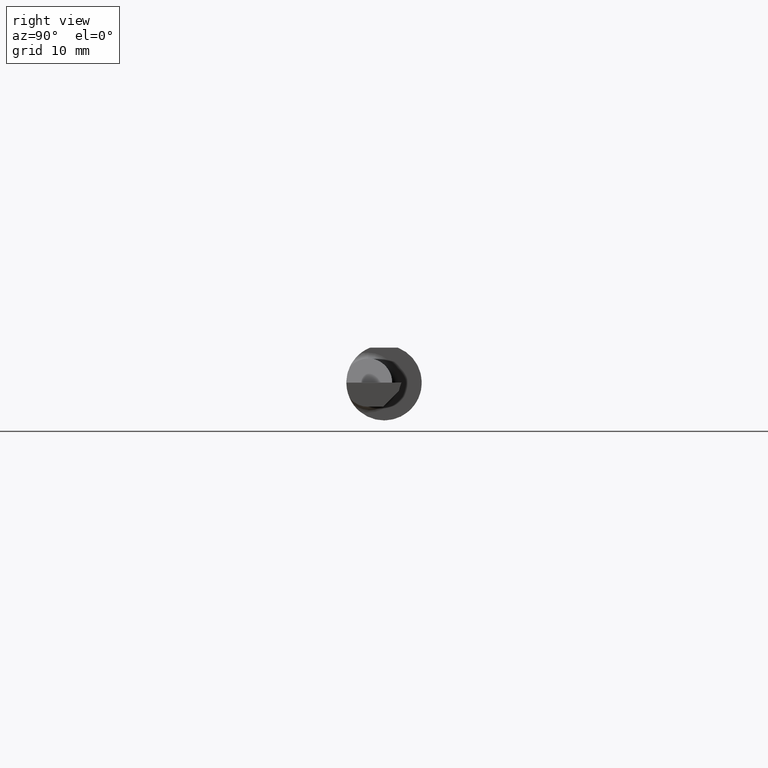
[diagram: clean part render]
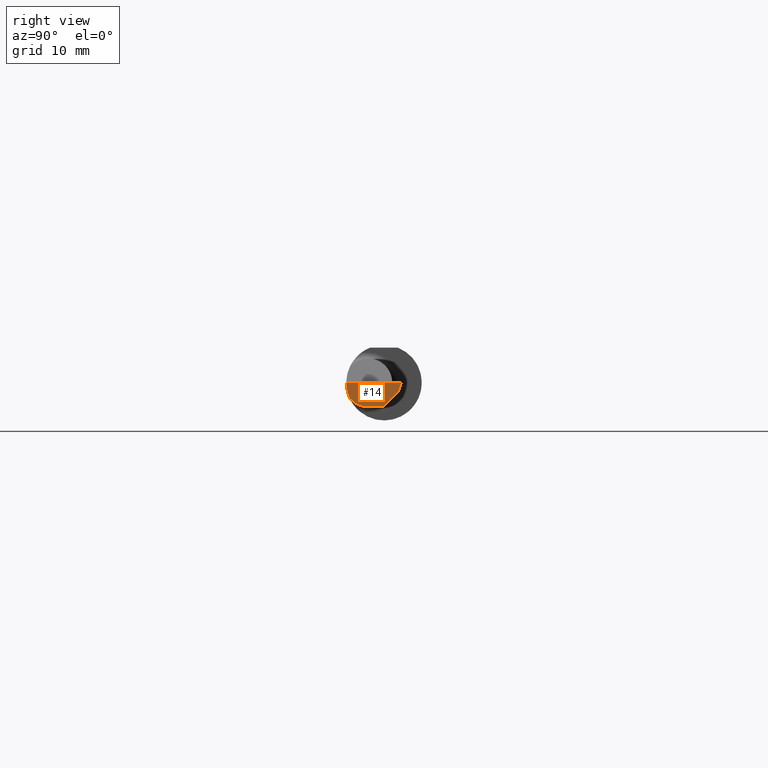
[diagram: same view with one face highlighted and labeled with its STEP entity id]
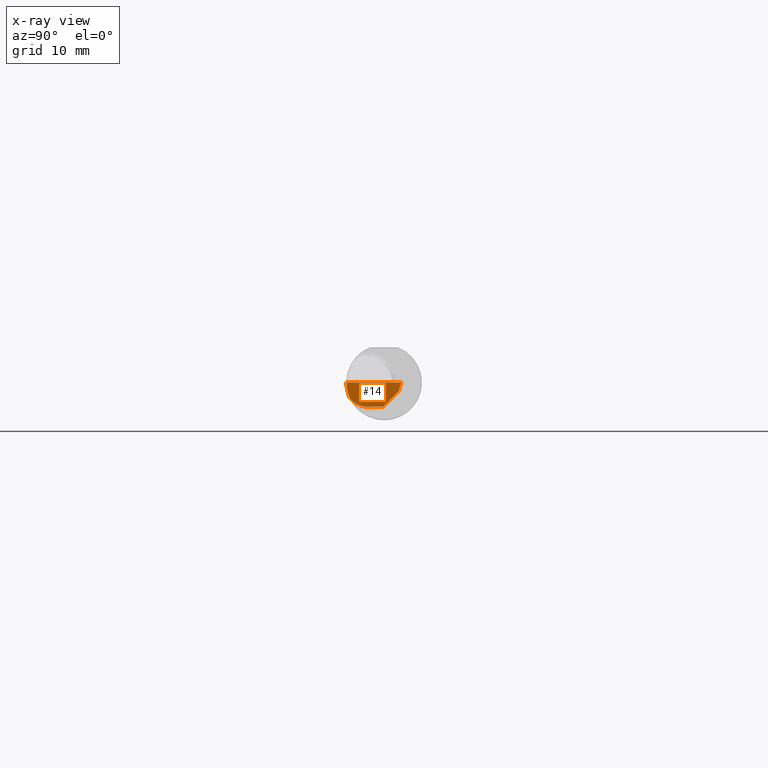
[diagram: x-ray of the same camera — body ghosted, the highlighted face saturated]
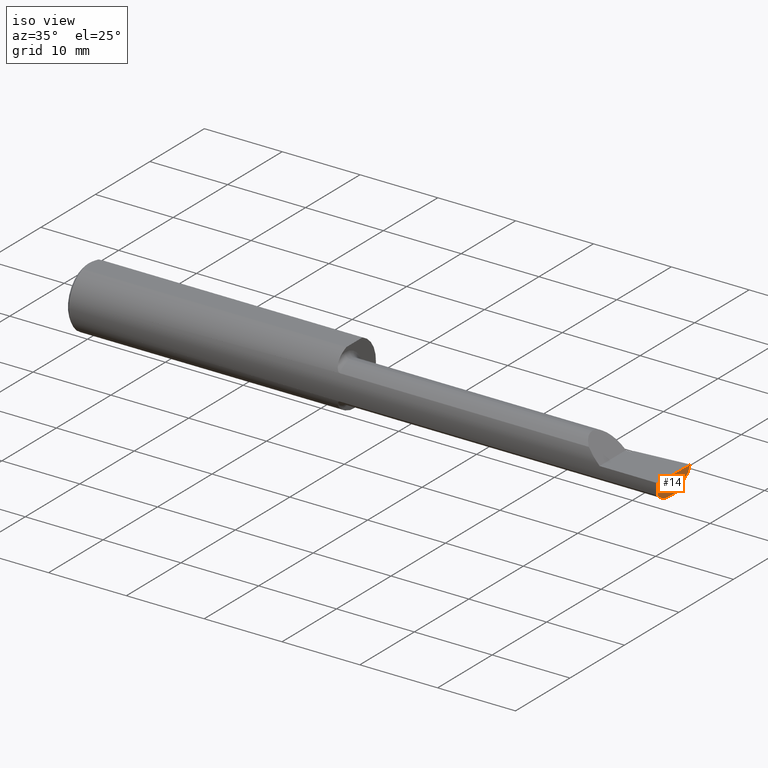
[diagram: same view with one face highlighted and labeled with its STEP entity id]
A machine part, right view. The second image highlights one B-rep face of the part: STEP entity #14.
The next image is the same camera in x-ray: the body ghosted, the highlighted face saturated — about 0% of this face is hidden behind the body in this view.
A second angle (iso view) of the same face is appended — the face is thin or edge-on in the first view.
In plain terms, the highlighted planar face has unit normal (-0.9922, 0.026, 0.1219).
Its self-contained STEP definition (entity closure, byte-faithful):
#6 = CARTESIAN_POINT ( 'NONE',  ( 2.994029609882220999, -0.1561000000000000165, -6.741913824051284207E-17 ) ) ;
#7 = ORIENTED_EDGE ( 'NONE', *, *, #225, .F. ) ;
#13 = CARTESIAN_POINT ( 'NONE',  ( 2.999999999999988010, 0.07190000000001794955, 6.195639166568494017E-14 ) ) ;
#14 = ADVANCED_FACE ( 'NONE', ( #263 ), #357, .F. ) ;
#16 = DIRECTION ( 'NONE',  ( -0.9922060308645593851, 0.02598182930462575313, 0.1218693434050675817 ) ) ;
#17 = VERTEX_POINT ( 'NONE', #6 ) ;
#24 = VERTEX_POINT ( 'NONE', #13 ) ;
#28 = CARTESIAN_POINT ( 'NONE',  ( 2.984129461495566904, -0.06558441532346323544, -0.09990000000000000269 ) ) ;
#55 = CARTESIAN_POINT ( 'NONE',  ( 2.982005098963842027, -0.1170392233017039929, -0.1062257522883768429 ) ) ;
#84 = CARTESIAN_POINT ( 'NONE',  ( 2.984118579027821738, -0.06599999999999998923, -0.09990000000000000269 ) ) ;
#87 = DIRECTION ( 'NONE',  ( -0.02617694830780482526, -0.9996573249755590362, 0.0000000000000000000 ) ) ;
#95 = CARTESIAN_POINT ( 'NONE',  ( 2.984162675884399540, -0.1227037540429563450, -0.08745207517224938554 ) ) ;
#96 = EDGE_CURVE ( 'NONE', #611, #17, #302, .T. ) ;
#119 = VECTOR ( 'NONE', #245, 39.37007874015748143 ) ;
#126 = EDGE_LOOP ( 'NONE', ( #462, #693, #490, #330, #7, #272 ) ) ;
#172 = VECTOR ( 'NONE', #472, 39.37007874015748854 ) ;
#225 = EDGE_CURVE ( 'NONE', #17, #24, #681, .T. ) ;
#229 = AXIS2_PLACEMENT_3D ( 'NONE', #55, #16, #307 ) ;
#237 = VERTEX_POINT ( 'NONE', #379 ) ;
#245 = DIRECTION ( 'NONE',  ( 0.1053106618240773340, 0.6976485211320194724, 0.7086580314005345160 ) ) ;
#259 = CARTESIAN_POINT ( 'NONE',  ( 2.984118579027821738, -0.06599999999999998923, -0.09990000000000000269 ) ) ;
#263 = FACE_OUTER_BOUND ( 'NONE', #126, .T. ) ;
#271 = CARTESIAN_POINT ( 'NONE',  ( 2.994029609882220999, -0.1561000000000000165, -6.741913824051284207E-17 ) ) ;
#272 = ORIENTED_EDGE ( 'NONE', *, *, #96, .F. ) ;
#277 = CARTESIAN_POINT ( 'NONE',  ( 2.991270569402207702, -0.1560999999999999333, -0.02246288137099534954 ) ) ;
#296 = CARTESIAN_POINT ( 'NONE',  ( 2.988699611492194652, -0.1513252362624134539, -0.04441242967472209396 ) ) ;
#302 =( BOUNDED_CURVE ( )  B_SPLINE_CURVE ( 3, ( #310, #296, #277, #271 ),
 .UNSPECIFIED., .F., .F. ) 
 B_SPLINE_CURVE_WITH_KNOTS ( ( 4, 4 ),
 ( 0.9323538202067606084, 1.360746882515126543 ),
 .UNSPECIFIED. ) 
 CURVE ( )  GEOMETRIC_REPRESENTATION_ITEM ( )  RATIONAL_B_SPLINE_CURVE ( ( 1.000000000000000000, 0.9847649979006014576, 0.9847649979006014576, 1.000000000000000000 ) ) 
 REPRESENTATION_ITEM ( '' )  );
#307 = DIRECTION ( 'NONE',  ( 0.1219104985252027346, 0.0000000000000000000, 0.9925410975618774723 ) ) ;
#310 = CARTESIAN_POINT ( 'NONE',  ( 2.986434241799654110, -0.1419939393939393391, -0.06484544066771595616 ) ) ;
#330 = ORIENTED_EDGE ( 'NONE', *, *, #456, .T. ) ;
#335 = LINE ( 'NONE', #584, #620 ) ;
#346 = VERTEX_POINT ( 'NONE', #496 ) ;
#357 = PLANE ( 'NONE',  #229 ) ;
#379 = CARTESIAN_POINT ( 'NONE',  ( 2.995407988494060980, 0.06070777456484576645, -0.03500000000000000333 ) ) ;
#442 = CARTESIAN_POINT ( 'NONE',  ( 2.991576527842700450, -0.2497794236187493300, -6.706628126323233036E-17 ) ) ;
#456 = EDGE_CURVE ( 'NONE', #237, #24, #335, .T. ) ;
#462 = ORIENTED_EDGE ( 'NONE', *, *, #522, .T. ) ;
#472 = DIRECTION ( 'NONE',  ( 0.02617694830780482526, 0.9996573249755590362, -3.765352607662714918E-18 ) ) ;
#490 = ORIENTED_EDGE ( 'NONE', *, *, #580, .T. ) ;
#491 = DIRECTION ( 'NONE',  ( 0.1240019227988382183, 0.3022330132596593999, 0.9451342385281453762 ) ) ;
#496 = CARTESIAN_POINT ( 'NONE',  ( 2.985763474991723232, -0.003183957434558108094, -0.09990000000000000269 ) ) ;
#501 = CARTESIAN_POINT ( 'NONE',  ( 2.986434241799654110, -0.1419939393939393391, -0.06484544066771595616 ) ) ;
#522 = EDGE_CURVE ( 'NONE', #611, #578, #703, .T. ) ;
#523 = LINE ( 'NONE', #28, #631 ) ;
#534 = CARTESIAN_POINT ( 'NONE',  ( 2.986434241799654110, -0.1419939393939393391, -0.06484544066771595616 ) ) ;
#563 = LINE ( 'NONE', #637, #119 ) ;
#578 = VERTEX_POINT ( 'NONE', #84 ) ;
#580 = EDGE_CURVE ( 'NONE', #346, #237, #563, .T. ) ;
#584 = CARTESIAN_POINT ( 'NONE',  ( 3.000188977433792203, 0.07236059946466684434, 0.001440373173039556642 ) ) ;
#593 = CARTESIAN_POINT ( 'NONE',  ( 2.983340380677749426, -0.09571819601686555601, -0.09990000000000001656 ) ) ;
#611 = VERTEX_POINT ( 'NONE', #534 ) ;
#620 = VECTOR ( 'NONE', #491, 39.37007874015748854 ) ;
#631 = VECTOR ( 'NONE', #87, 39.37007874015748854 ) ;
#637 = CARTESIAN_POINT ( 'NONE',  ( 2.995690841152387485, 0.06258158045839873340, -0.03309662379331457238 ) ) ;
#681 = LINE ( 'NONE', #442, #172 ) ;
#693 = ORIENTED_EDGE ( 'NONE', *, *, #698, .F. ) ;
#698 = EDGE_CURVE ( 'NONE', #346, #578, #523, .T. ) ;
#703 =( BOUNDED_CURVE ( )  B_SPLINE_CURVE ( 3, ( #501, #95, #593, #259 ),
 .UNSPECIFIED., .F., .T. ) 
 B_SPLINE_CURVE_WITH_KNOTS ( ( 4, 4 ),
 ( 5.628843761710450977, 6.493234751459355358 ),
 .UNSPECIFIED. ) 
 CURVE ( )  GEOMETRIC_REPRESENTATION_ITEM ( )  RATIONAL_B_SPLINE_CURVE ( ( 1.000000000000000000, 0.9386988813357772798, 0.9386988813357772798, 1.000000000000000000 ) ) 
 REPRESENTATION_ITEM ( '' )  );